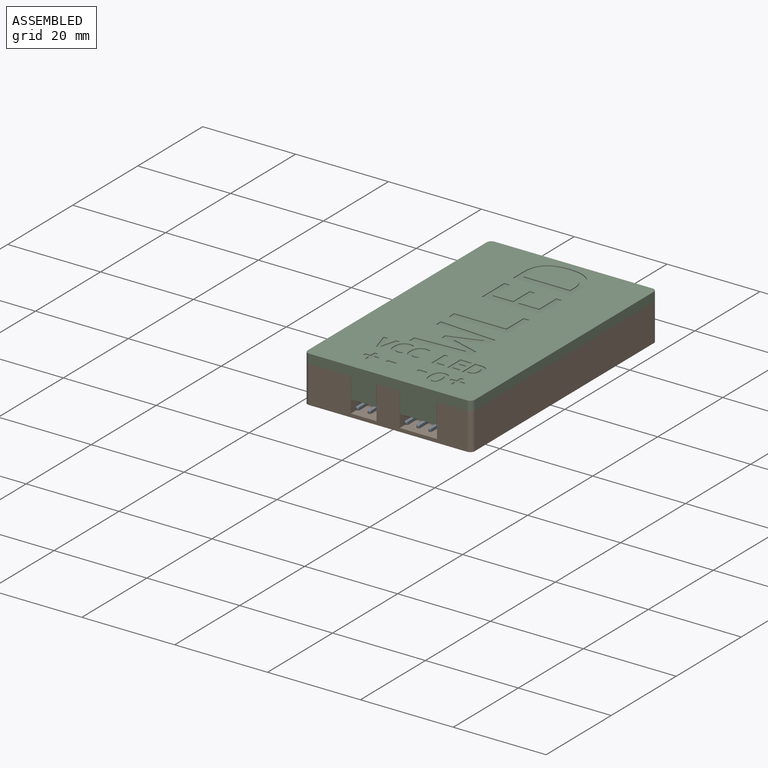
[diagram: assembled view]
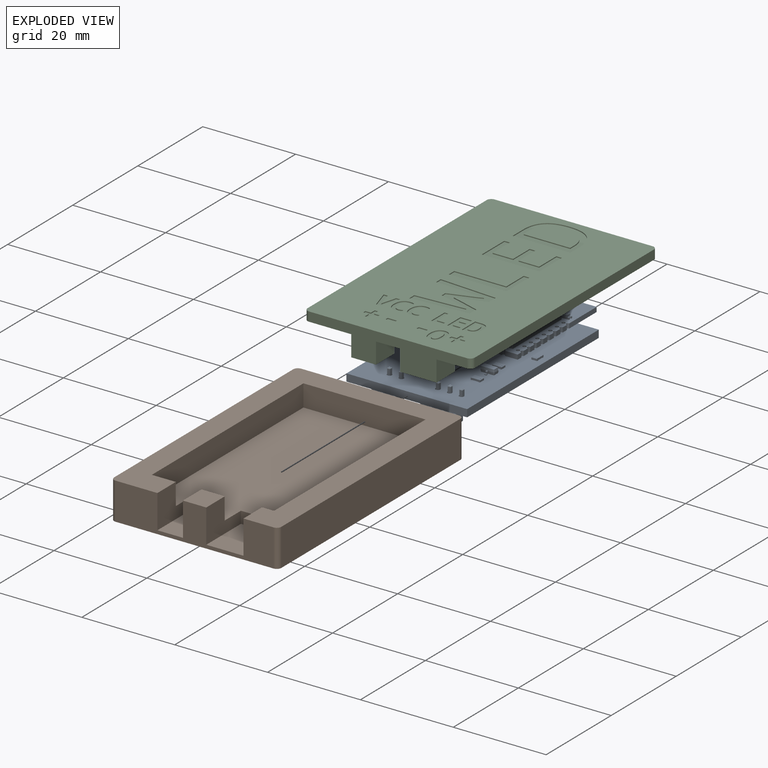
[diagram: exploded view]
GUIDED TOUR — FREECAD ASSEMBLY "wled_0.0"

This assembly has 3 components, labeled P0..P2 below (a component is one placed body or linked part; the same part can appear more than once), held together by 0 modeled joints plus 3 derived contact edges. A joint is a constraint between two components; its type names the relative motion it leaves free:
  CONTACT — a derived adjacency edge — the two components touch in the source model (clearance under 2% of the assembly's diagonal); it is measured from the geometry, not a modeled constraint.
Axis/direction vectors are unit vectors and 'through' points are millimeter coordinates, both in the assembly's world frame.

MATES
  1. CONTACT "contact_0_1": P0 <-> P1, contact direction (0.000, -1.000, 0.000) through (3.24, -15.95, 3.35) mm (derived from contact, not a modeled constraint)
  2. CONTACT "contact_0_2": P0 <-> P2, contact direction (0.000, 0.000, 1.000) through (-12.81, -20.49, 5.03) mm (derived from contact, not a modeled constraint)
  3. CONTACT "contact_1_2": P1 <-> P2, contact direction (0.000, -1.000, 0.000) through (17.28, 30.85, 8.00) mm (derived from contact, not a modeled constraint)

ASSEMBLY ORDER
  1. P0 — the base component [order heuristic]
  2. P1 [order heuristic]
  3. P2 [order heuristic]
Order-tag legend:
  [order heuristic] — this assembly is geometrically interlocked (no collision-free removal order exists), so components are listed in mate-graph order; insertion feasibility is not verified.

Of the 3 components, 2 carry a construction recipe — the FreeCAD feature program (sketches with constraints, then the solid features that consume them) that regenerates the part from scratch, quoted from this document or from the linked companion document it references; the rest are supplied as boundary geometry only. The tour below walks the components in assembly order: each is shown spotlighted twice — in the assembled view, then in the exploded view, where a leader line traces a displaced component back to its assembled socket (components that stay in place when exploded have no leader line; saturated green if recipe-attached, orange if geometry-only; every other component desaturated gray) — followed by its recipe or geometry summary and the mates that hold it.
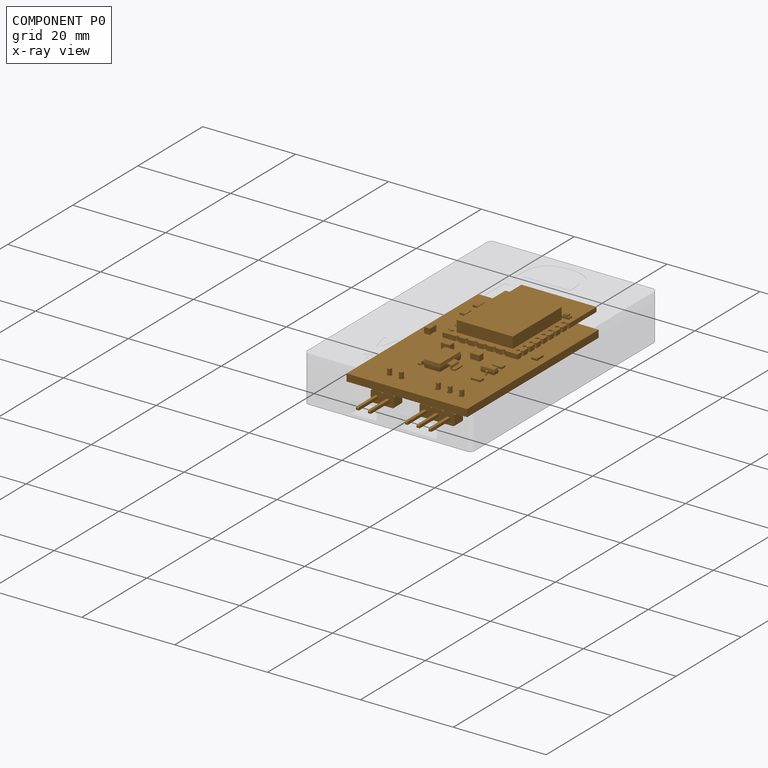
[diagram: component P0 — x-ray view]
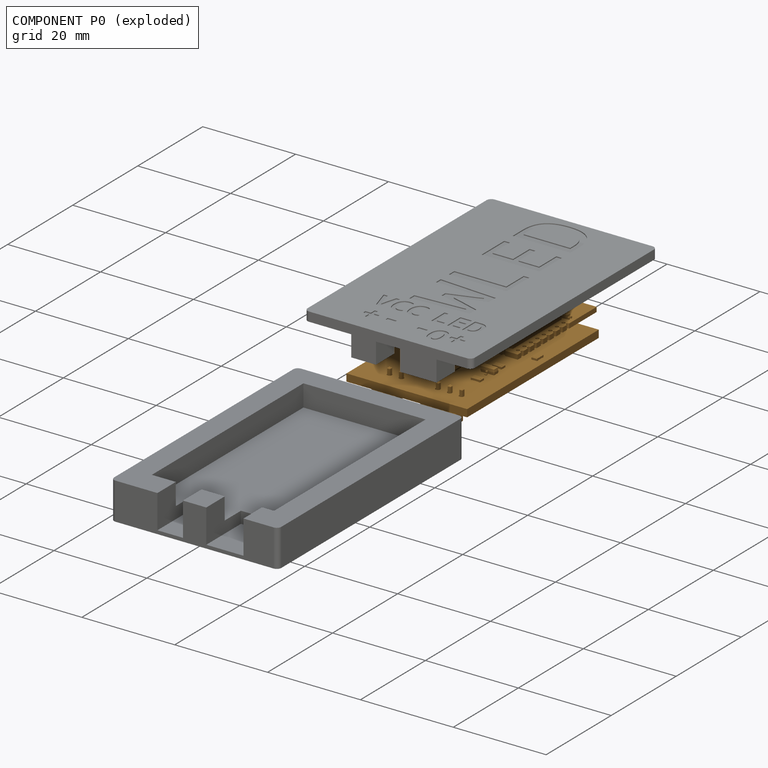
[diagram: component P0 — exploded]
COMPONENT P0 — geometry summary ("wled_0.0"; no construction recipe available for this part):
  bounding box: 52.4 x 26.0 x 7.5 mm
  tessellated surface: 69,220 triangles
  volume: 2440 mm^3 (24% of its bounding box)
Held by: resting contact with P1 (derived edge); resting contact with P2 (derived edge).
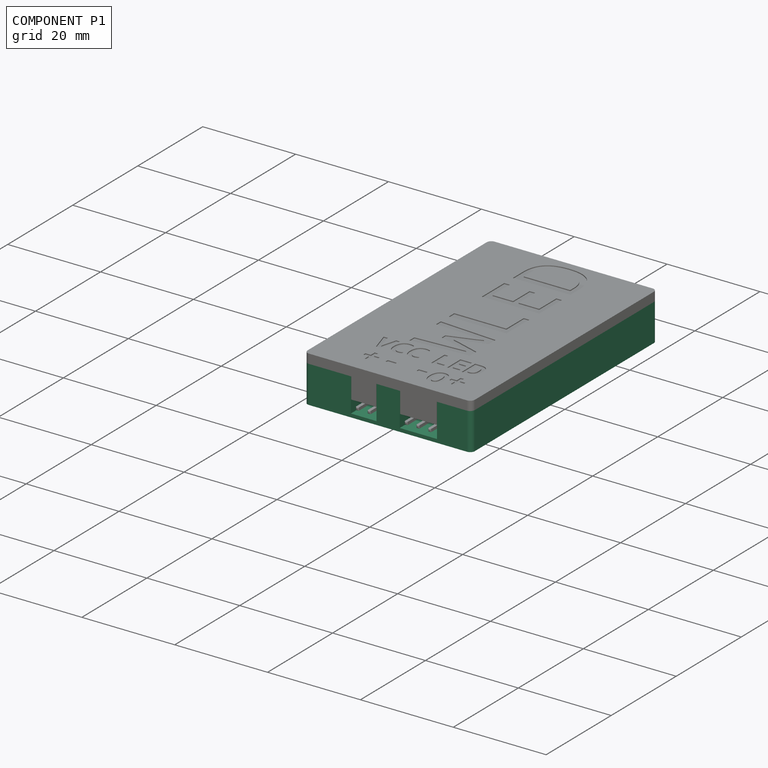
[diagram: component P1 — assembled]
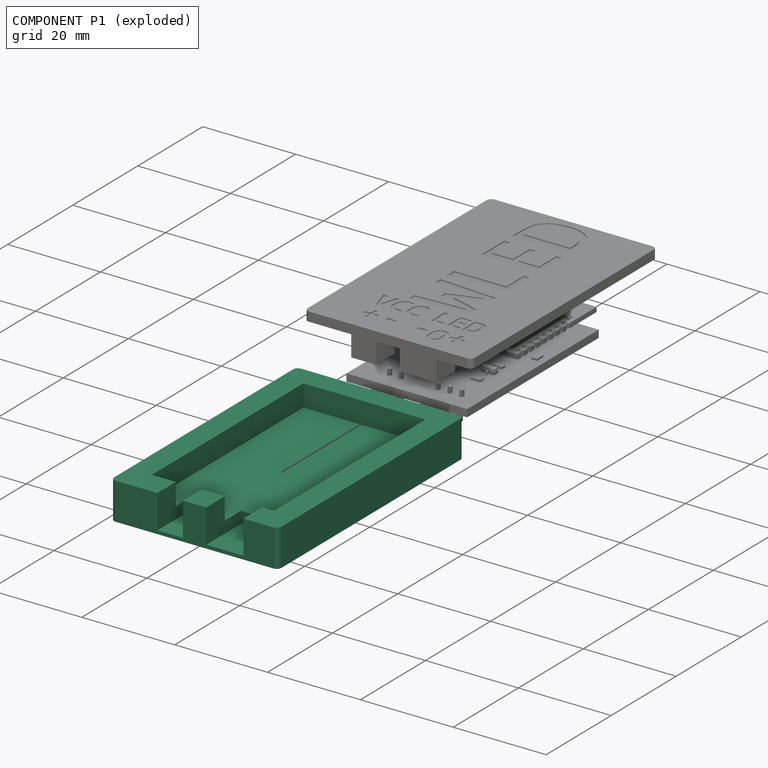
[diagram: component P1 — exploded]
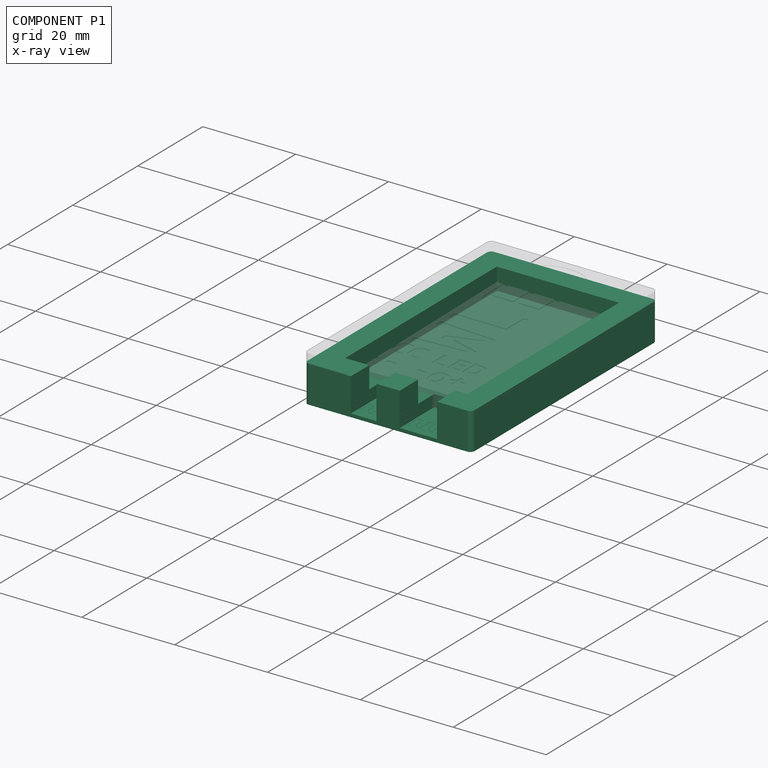
[diagram: component P1 — x-ray view]
COMPONENT P1 — recipe-attached ("Dnishe", modeled in this document).
Held by: resting contact with P0 (derived edge); resting contact with P2 (derived edge).
Construction recipe (the document's own serialized feature program — sketch geometry with constraints, then the solid features built on it; lengths are millimeters unless a unit is written):

FEATURE [Sketcher::SketchObject] Sketch
  FullyConstrained = false
  MapMode = 5
  Support = -> [XY_Plane]
  sketch-geometry (7):
    g0: LineSegment StartX=-17.73 StartY=30.85 StartZ=0 EndX=18.28 EndY=30.85 EndZ=0
    g1: LineSegment StartX=18.28 StartY=30.85 StartZ=0 EndX=18.28 EndY=-26.2254 EndZ=0
    g2: LineSegment StartX=18.28 StartY=-26.2254 StartZ=0 EndX=-17.73 EndY=-26.2254 EndZ=0
    g3: LineSegment StartX=-17.73 StartY=-26.2254 StartZ=0 EndX=-17.73 EndY=30.85 EndZ=0
    g4: GeomPoint X=-12.73 Y=-20.4 Z=0
    g5: GeomPoint X=13.28 Y=-20.4 Z=0
    g6: GeomPoint X=0 Y=25.85 Z=0
  constraints (17):
    c: Coincident(g0,g1)
    c: Coincident(g1,g2)
    c: Coincident(g2,g3)
    c: Coincident(g3,g0)
    c: Horizontal(g0)
    c: Horizontal(g2)
    c: Vertical(g1)
    c: Vertical(g3)
    c: DistanceX(g-2,g5) = 13.28
    c: DistanceY(g-1,g5) = -20.4
    c: DistanceX(g-2,g4) = -12.73
    c: DistanceY(g-1,g4) = -20.4
    c: PointOnObject(g6,g-2)
    c: DistanceY(g-1,g6) = 25.85
    c: Distance(g4,g3) = 5
    c: Distance(g5,g1) = 5
    c: Distance(g6,g0) = 5
FEATURE [PartDesign::Pad] Pad
  Direction = (1,1,1)
  Length = 8
  Length2 = 100
  Profile = -> Sketch
  Type = 0
FEATURE [Sketcher::SketchObject] Sketch001
  FullyConstrained = false
  MapMode = 5
  Placement = pos=(0,0,8) rot=(0,0,1;0rad)
  Support = -> [Pad]
  sketch-geometry (4):
    g0: LineSegment StartX=-12.8861 StartY=26.0581 StartZ=0 EndX=13.425 EndY=26.0581 EndZ=0
    g1: LineSegment StartX=13.425 StartY=26.0581 StartZ=0 EndX=13.425 EndY=-20.5605 EndZ=0
    g2: LineSegment StartX=13.425 StartY=-20.5605 StartZ=0 EndX=-12.8861 EndY=-20.5605 EndZ=0
    g3: LineSegment StartX=-12.8861 StartY=-20.5605 StartZ=0 EndX=-12.8861 EndY=26.0581 EndZ=0
  constraints (8):
    c: Coincident(g0,g1)
    c: Coincident(g1,g2)
    c: Coincident(g2,g3)
    c: Coincident(g3,g0)
    c: Horizontal(g0)
    c: Horizontal(g2)
    c: Vertical(g1)
    c: Vertical(g3)
FEATURE [PartDesign::Pocket] Pocket
  BaseFeature = -> Pad
  Length = 4.7
  Length2 = 100
  Profile = -> Sketch001
  Type = 0
FEATURE [PartDesign::Fillet] Fillet
  Base = -> Pocket [Edge8,Edge5,Edge2,Edge1]
  BaseFeature = -> Pocket
  Radius = 1
  SupportTransform = false
FEATURE [Sketcher::SketchObject] Sketch003
  ExternalGeometry = -> [Pocket]
  FullyConstrained = false
  MapMode = 5
  Placement = pos=(0,0,8) rot=(0,0,1;0rad)
  Support = -> [Pocket]
  sketch-geometry (8):
    g0: LineSegment StartX=-7.72183 StartY=-15.5602 StartZ=0 EndX=-2.21025 EndY=-15.5602 EndZ=0
    g1: LineSegment StartX=-2.21025 StartY=-15.5602 StartZ=0 EndX=-2.21025 EndY=-26.2254 EndZ=0
    g2: LineSegment StartX=-2.21025 StartY=-26.2254 StartZ=0 EndX=-7.72183 EndY=-26.2254 EndZ=0
    g3: LineSegment StartX=-7.72183 StartY=-26.2254 StartZ=0 EndX=-7.72183 EndY=-15.5602 EndZ=0
    g4: LineSegment StartX=2.80286 StartY=-15.5602 StartZ=0 EndX=10.8274 EndY=-15.5602 EndZ=0
    g5: LineSegment StartX=10.8274 StartY=-15.5602 StartZ=0 EndX=10.8274 EndY=-26.2254 EndZ=0
    g6: LineSegment StartX=10.8274 StartY=-26.2254 StartZ=0 EndX=2.80286 EndY=-26.2254 EndZ=0
    g7: LineSegment StartX=2.80286 StartY=-26.2254 StartZ=0 EndX=2.80286 EndY=-15.5602 EndZ=0
  constraints (19):
    c: Coincident(g0,g1)
    c: Coincident(g1,g2)
    c: Coincident(g2,g3)
    c: Coincident(g3,g0)
    c: Horizontal(g0)
    c: Horizontal(g2)
    c: Vertical(g1)
    c: Vertical(g3)
    c: PointOnObject(g1,g-3)
    c: Coincident(g4,g5)
    c: Coincident(g5,g6)
    c: Coincident(g6,g7)
    c: Coincident(g7,g4)
    c: Horizontal(g4)
    c: Horizontal(g6)
    c: Vertical(g5)
    c: Vertical(g7)
    c: PointOnObject(g5,g-3)
    c: Equal(g1,g7)
FEATURE [PartDesign::Pocket] Pocket002
  BaseFeature = -> Fillet
  Length = 7.25
  Length2 = 100
  Profile = -> Sketch003
  Type = 0
FEATURE [PartDesign::Body] Body  label="Dnishe"
  Group = -> [Sketch,Pad,Sketch001,Pocket,Fillet,Sketch003,Pocket002]
  Origin = -> Origin
  Tip = -> Pocket002
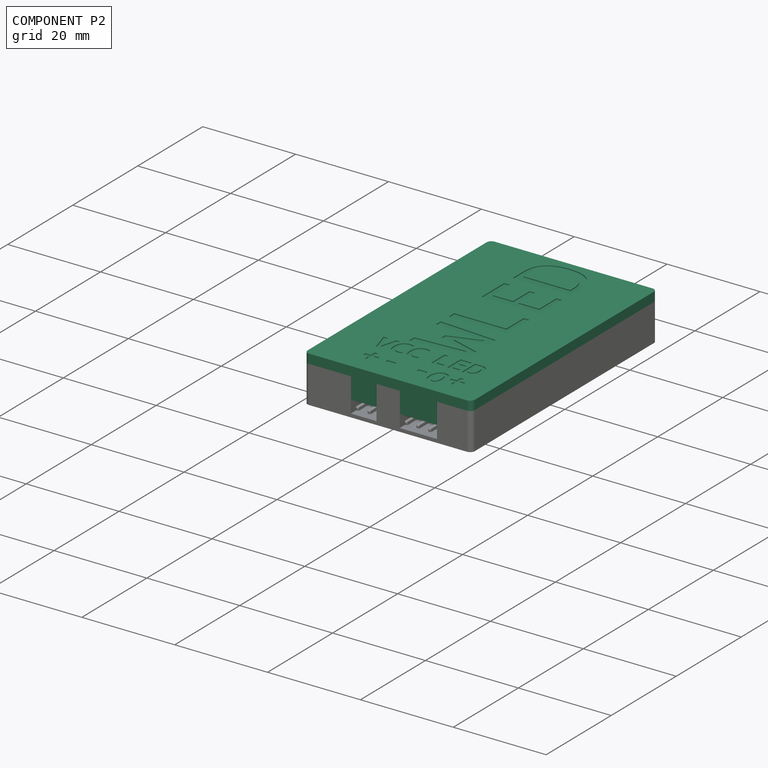
[diagram: component P2 — assembled]
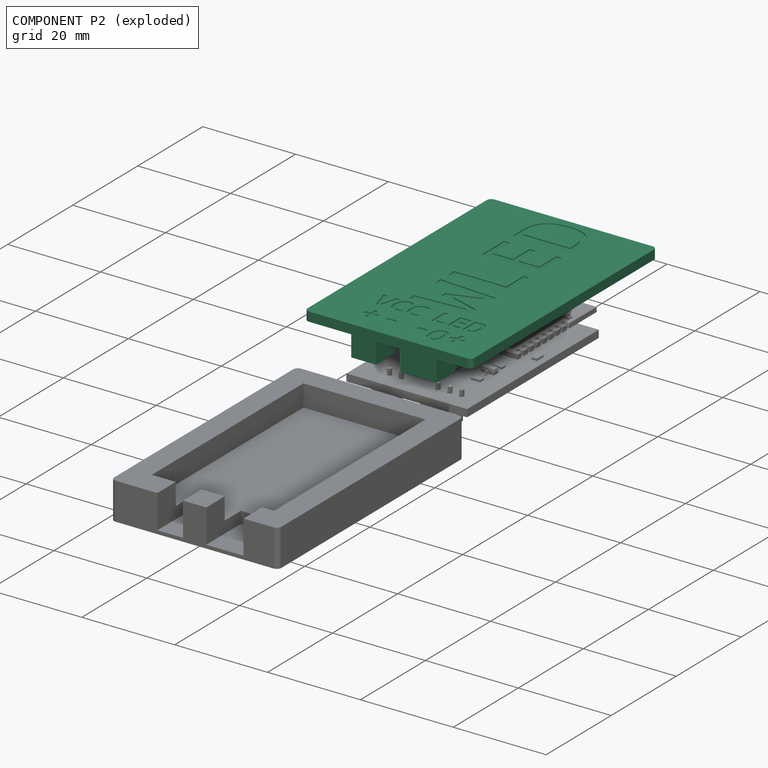
[diagram: component P2 — exploded]
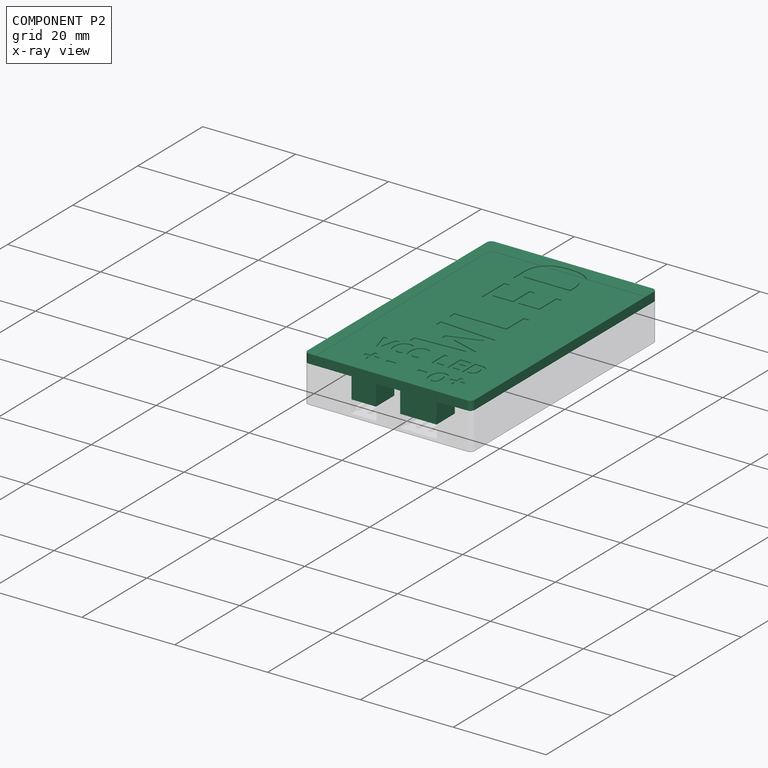
[diagram: component P2 — x-ray view]
COMPONENT P2 — recipe-attached ("NotDnishe", modeled in this document).
Held by: resting contact with P0 (derived edge); resting contact with P1 (derived edge).
Construction recipe (the document's own serialized feature program — sketch geometry with constraints, then the solid features built on it; lengths are millimeters unless a unit is written):

FEATURE [PartDesign::SubShapeBinder] Binder
  BindMode = 0
  ClaimChildren = false
  Context = -> Body001 [Binder.]
  Fuse = false
  MakeFace = true
  PartialLoad = false
  Relative = true
  Support = -> [Body[Fillet.Edge16,Fillet.Vertex13,Fillet.Edge18,Fillet.Edge20,Fillet.Edge19,Fillet.Edge17,Fillet.Edge15,Fillet.Edge4]]
  _Version = 2
FEATURE [PartDesign::Pad] Pad001
  Direction = (1,1,1)
  Length = 2
  Length2 = 100
  Profile = -> Binder
  Type = 0
FEATURE [PartDesign::SubShapeBinder] Binder001
  BindMode = 0
  ClaimChildren = false
  Context = -> Body001 [Binder001.]
  Fuse = false
  MakeFace = true
  PartialLoad = false
  Relative = true
  Support = -> [Body[Fillet.Edge24,Fillet.Edge21,Fillet.Edge22,Fillet.Edge23]]
  _Version = 2
FEATURE [PartDesign::Pad] Pad002
  BaseFeature = -> Pad001
  Direction = (1,1,1)
  Length = 1.95
  Length2 = 100
  Profile = -> Binder001
  Reversed = true
  Type = 0
FEATURE [Sketcher::SketchObject] Sketch002
  FullyConstrained = false
  MapMode = 5
  Placement = pos=(0,0,6.05) rot=(1,0,0;3.14159rad)
  Support = -> [Pad002]
  sketch-geometry (4):
    g0: LineSegment StartX=-7.1829 StartY=17.3485 StartZ=0 EndX=10.2056 EndY=17.3485 EndZ=0
    g1: LineSegment StartX=10.2056 StartY=17.3485 StartZ=0 EndX=10.2056 EndY=-19.8365 EndZ=0
    g2: LineSegment StartX=10.2056 StartY=-19.8365 StartZ=0 EndX=-7.1829 EndY=-19.8365 EndZ=0
    g3: LineSegment StartX=-7.1829 StartY=-19.8365 StartZ=0 EndX=-7.1829 EndY=17.3485 EndZ=0
  constraints (8):
    c: Coincident(g0,g1)
    c: Coincident(g1,g2)
    c: Coincident(g2,g3)
    c: Coincident(g3,g0)
    c: Horizontal(g0)
    c: Horizontal(g2)
    c: Vertical(g1)
    c: Vertical(g3)
FEATURE [PartDesign::Pocket] Pocket001
  BaseFeature = -> Pad002
  Length = 2.5
  Length2 = 100
  Profile = -> Sketch002
  Type = 0
FEATURE [Sketcher::SketchObject] Sketch004
  ExternalGeometry = -> [Pocket001]
  FullyConstrained = false
  MapMode = 5
  Placement = pos=(0,0,8) rot=(1,0,0;3.14159rad)
  Support = -> [Pocket001]
  sketch-geometry (8):
    g0: LineSegment StartX=-7.62247 StartY=26.2254 StartZ=0 EndX=-7.62247 EndY=20.5605 EndZ=0
    g1: LineSegment StartX=-7.62247 StartY=26.2254 StartZ=0 EndX=-2.31609 EndY=26.2254 EndZ=0
    g2: LineSegment StartX=-2.31609 StartY=26.2254 StartZ=0 EndX=-2.31609 EndY=20.5605 EndZ=0
    g3: LineSegment StartX=-2.31609 StartY=20.5605 StartZ=0 EndX=-7.62247 EndY=20.5605 EndZ=0
    g4: LineSegment StartX=2.90391 StartY=26.2254 StartZ=0 EndX=2.90391 EndY=20.5605 EndZ=0
    g5: LineSegment StartX=2.90391 StartY=20.5605 StartZ=0 EndX=10.7289 EndY=20.5605 EndZ=0
    g6: LineSegment StartX=10.7289 StartY=20.5605 StartZ=0 EndX=10.7289 EndY=26.2254 EndZ=0
    g7: LineSegment StartX=10.7289 StartY=26.2254 StartZ=0 EndX=2.90391 EndY=26.2254 EndZ=0
  constraints (20):
    c: PointOnObject(g0,g-4)
    c: PointOnObject(g0,g-3)
    c: Vertical(g0)
    c: Coincident(g1,g0)
    c: PointOnObject(g1,g-4)
    c: Coincident(g2,g1)
    c: PointOnObject(g2,g-3)
    c: Vertical(g2)
    c: Coincident(g3,g2)
    c: Coincident(g3,g0)
    c: PointOnObject(g4,g-4)
    c: PointOnObject(g4,g-3)
    c: Vertical(g4)
    c: Coincident(g5,g4)
    c: PointOnObject(g5,g-3)
    c: Coincident(g6,g5)
    c: PointOnObject(g6,g-4)
    c: Vertical(g6)
    c: Coincident(g7,g6)
    c: Coincident(g7,g4)
FEATURE [PartDesign::Pad] Pad003
  BaseFeature = -> Pocket001
  Direction = (1,1,1)
  Length = 4.5
  Length2 = 100
  Profile = -> Sketch004
  Type = 0
FEATURE [Part::Part2DObjectPython] ShapeString  # Draft 2D object (typed FeaturePython)
  FontFile = <path>
  Placement = pos=(2.5,-17,10) rot=(0,0,1;0rad)
  Size = 5
  String = LED
  Tracking = 0
FEATURE [Part::Part2DObjectPython] ShapeString001  # Draft 2D object (typed FeaturePython)
  FontFile = <path>
  Placement = pos=(-10,-17,10) rot=(0,0,1;0rad)
  Size = 5
  String = VCC
  Tracking = 0
FEATURE [Part::Part2DObjectPython] ShapeString002  # Draft 2D object (typed FeaturePython)
  FontFile = <path>
  Placement = pos=(-8.9,-22.4,10) rot=(0,0,1;0rad)
  Size = 5
  String = +
  Tracking = 0
FEATURE [Part::Part2DObjectPython] ShapeString003  # Draft 2D object (typed FeaturePython)
  FontFile = <path>
  Placement = pos=(-4.58,-22.47,10) rot=(0,0,1;0rad)
  Size = 5
  String = -
  Tracking = 0
FEATURE [Part::Part2DObjectPython] ShapeString004  # Draft 2D object (typed FeaturePython)
  FontFile = <path>
  Placement = pos=(9.61,-22.4,10) rot=(0,0,1;0rad)
  Size = 5
  String = +
  Tracking = 0
FEATURE [Part::Part2DObjectPython] ShapeString005  # Draft 2D object (typed FeaturePython)
  FontFile = <path>
  Placement = pos=(5.8,-23.4,10) rot=(0,0,1;0rad)
  Size = 5
  String = O
  Tracking = 0
FEATURE [Part::Part2DObjectPython] ShapeString006  # Draft 2D object (typed FeaturePython)
  FontFile = <path>
  Placement = pos=(2.1,-22.49,10) rot=(0,0,1;0rad)
  Size = 5
  String = -
  Tracking = 0
FEATURE [Part::Part2DObjectPython] ShapeString007  # Draft 2D object (typed FeaturePython)
  FontFile = <path>
  Placement = pos=(7,-12,10) rot=(0,0,1;1.5708rad)
  Size = 15
  String = WLED
  Tracking = 0
FEATURE [PartDesign::Pocket] Pocket003
  BaseFeature = -> Pad003
  Length = 0.2
  Length2 = 100
  Profile = -> ShapeString001
  Type = 0
FEATURE [PartDesign::Pocket] Pocket004
  BaseFeature = -> Pocket003
  Length = 0.2
  Length2 = 100
  Profile = -> ShapeString
  Type = 0
FEATURE [PartDesign::Pocket] Pocket005
  BaseFeature = -> Pocket004
  Length = 0.2
  Length2 = 100
  Profile = -> ShapeString002
  Type = 0
FEATURE [PartDesign::Pocket] Pocket006
  BaseFeature = -> Pocket005
  Length = 0.2
  Length2 = 100
  Profile = -> ShapeString003
  Type = 0
FEATURE [PartDesign::Pocket] Pocket007
  BaseFeature = -> Pocket006
  Length = 0.2
  Length2 = 100
  Profile = -> ShapeString004
  Type = 0
FEATURE [PartDesign::Pocket] Pocket008
  BaseFeature = -> Pocket007
  Length = 0.2
  Length2 = 100
  Profile = -> ShapeString005
  Type = 0
FEATURE [PartDesign::Pocket] Pocket009
  BaseFeature = -> Pocket008
  Length = 0.2
  Length2 = 100
  Profile = -> ShapeString006
  Type = 0
FEATURE [PartDesign::Pocket] Pocket010
  BaseFeature = -> Pocket009
  Length = 0.2
  Length2 = 100
  Profile = -> ShapeString007
  Type = 0
FEATURE [Sketcher::SketchObject] Sketch005
  ExternalGeometry = -> [Pad002]
  FullyConstrained = false
  MapMode = 5
  Placement = pos=(0,0,6.05) rot=(1,0,0;3.14159rad)
  Support = -> [Pad002]
  sketch-geometry (4):
    g0: LineSegment StartX=-12.8861 StartY=20.5605 StartZ=0 EndX=13.425 EndY=20.5605 EndZ=0
    g1: LineSegment StartX=13.425 StartY=20.5605 StartZ=0 EndX=13.425 EndY=17.91 EndZ=0
    g2: LineSegment StartX=13.425 StartY=17.91 StartZ=0 EndX=-12.8861 EndY=17.91 EndZ=0
    g3: LineSegment StartX=-12.8861 StartY=17.91 StartZ=0 EndX=-12.8861 EndY=20.5605 EndZ=0
  constraints (10):
    c: Coincident(g0,g1)
    c: Coincident(g1,g2)
    c: Coincident(g2,g3)
    c: Coincident(g3,g0)
    c: Horizontal(g0)
    c: Horizontal(g2)
    c: Vertical(g1)
    c: Vertical(g3)
    c: Coincident(g0,g-5)
    c: PointOnObject(g1,g-4)
FEATURE [PartDesign::Pad] Pad004
  BaseFeature = -> Pocket010
  Direction = (1,1,1)
  Length = 1
  Length2 = 100
  Profile = -> Sketch005
  Type = 0
FEATURE [PartDesign::Body] Body001  label="NotDnishe"
  Group = -> [Binder,Pad001,Binder001,Pad002,Sketch002,Pocket001,Sketch004,Pad003,ShapeString001,ShapeString002,ShapeString003,ShapeString004,ShapeString005,ShapeString006,ShapeString007,ShapeString,Pocket003,Pocket004,Pocket005,Pocket006,Pocket007,Pocket008,Pocket009,Pocket010,Sketch005,Pad004]
  Origin = -> Origin010
  Tip = -> Pad004
PROVENANCE & LICENSES
Assembly and component geometry: a FreeCAD (.FCStd) document from a public repository crawl; components, placements and joints were extracted with FreeCAD and each solid tessellated.
Construction recipes: the document's own serialized feature recipes (and, for linked parts, the recipes of companion documents from the same project).
License: as declared in the source repository (recorded in the dataset sidecar).
Joints: native FreeCAD joints and A2plus constraints are mapped to standard mate types; edges marked 'derived from contact' connect touching components and are measured from the geometry, not modeled.
Verification: 2 of this assembly's 3 components carry a construction recipe (2 from this document itself); the rest are geometry-only. Every component's tessellation passed the extraction mesh gates (mesh-volume checksum against the B-rep where available, bounding-box inflation <= 2%).
Renders: orthographic iso camera (az 35 / el 25); the floor grid conveys scale (grid pitch printed in each image; no ruler). In the exploded view each component is displaced by its stored offset vector: the offsets alone carry the explosion direction (mate normal/axis signs are not orientation cues and do not encode it), and separation distances are assigned per mate-chain, not proportionally to assembly-order depth.
